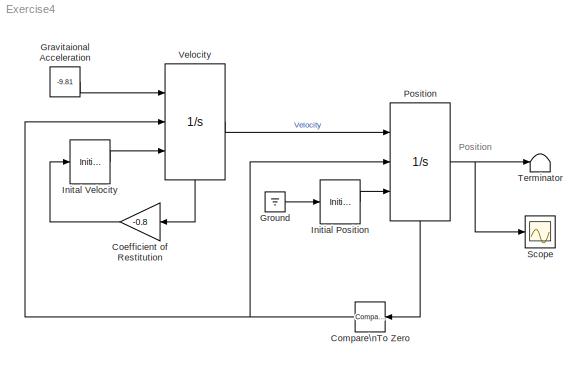
MODEL Exercise4
KIND model
BLOCK [Gain] Coefficient of Restitution
  Gain = -0.8
  OutDataTypeMode = Inherit via internal rule
  ParameterDataTypeMode = Inherit via internal rule
  SaturateOnIntegerOverflow = off
BLOCK [Reference] Compare\nTo Zero  REF=simulink/Logic and Bit\nOperations/Compare\nTo Zero
  LogicOutDataTypeMode = boolean
  Ports = [1, 1]
  ShowPortLabels = on
  SourceBlock = simulink/Logic and Bit\nOperations/Compare\nTo Zero
  SourceType = Compare To Zero
  ZeroCross = off
  relop = <=
BLOCK [Constant] Gravitaional Acceleration
  Value = -9.81
BLOCK [Ground] Ground
BLOCK [InitialCondition] Inital Velocity
  Value = 15
BLOCK [InitialCondition] Initial Position
  Value = 10
BLOCK [Integrator] Position
  ExternalReset = rising
  IgnoreLimit = off
  InitialConditionSource = external
  LimitOutput = on
  Ports = [3, 1, 0, 0, 1]
  ShowStatePort = on
BLOCK [Scope] Scope
  DataFormat = StructureWithTime
  NumInputPorts = 1
  Ports = [1]
BLOCK [Terminator] Terminator
BLOCK [Integrator] Velocity
  ExternalReset = rising
  IgnoreLimit = off
  InitialConditionSource = external
  Ports = [3, 1, 0, 0, 1]
  ShowStatePort = on
ANNOTATION (root): Position
LINE Coefficient of Restitution:1 -> Inital Velocity:1
NET Compare\nTo Zero:1 -> Position:2, Velocity:2
LINE Gravitaional Acceleration:1 -> Velocity:1
LINE Ground:1 -> Initial Position:1
LINE Inital Velocity:1 -> Velocity:3
LINE Initial Position:1 -> Position:3
NET Position:1 -> Scope:1, Terminator:1
LINE Position:state -> Compare\nTo Zero:1
LINE Velocity:1 -> Position:1
LINE Velocity:state -> Coefficient of Restitution:1
note: NET lines group one-source signal fan-out (src -> all destinations, sorted); 1:1 wires keep LINE
